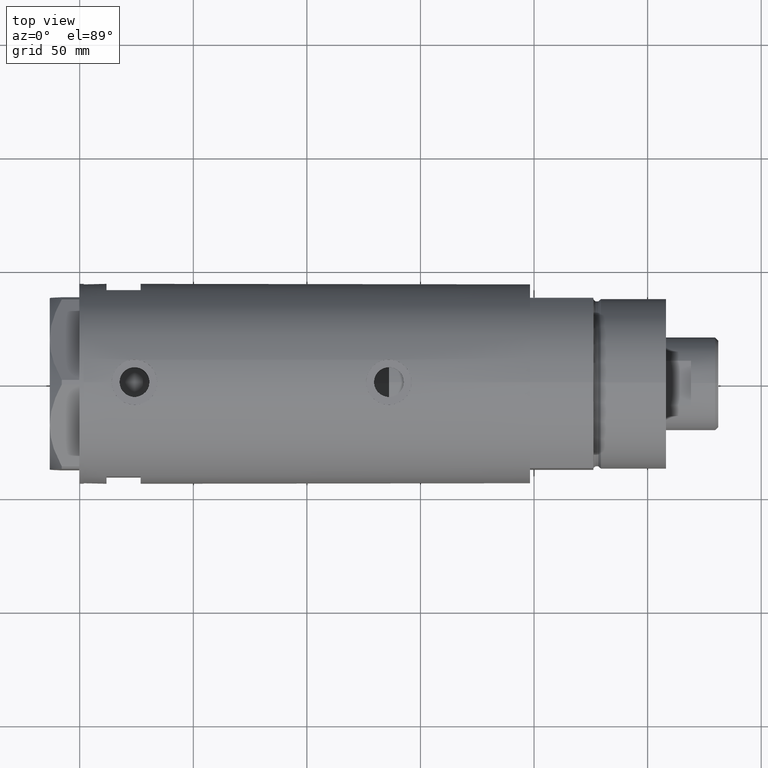
[diagram: clean part render]
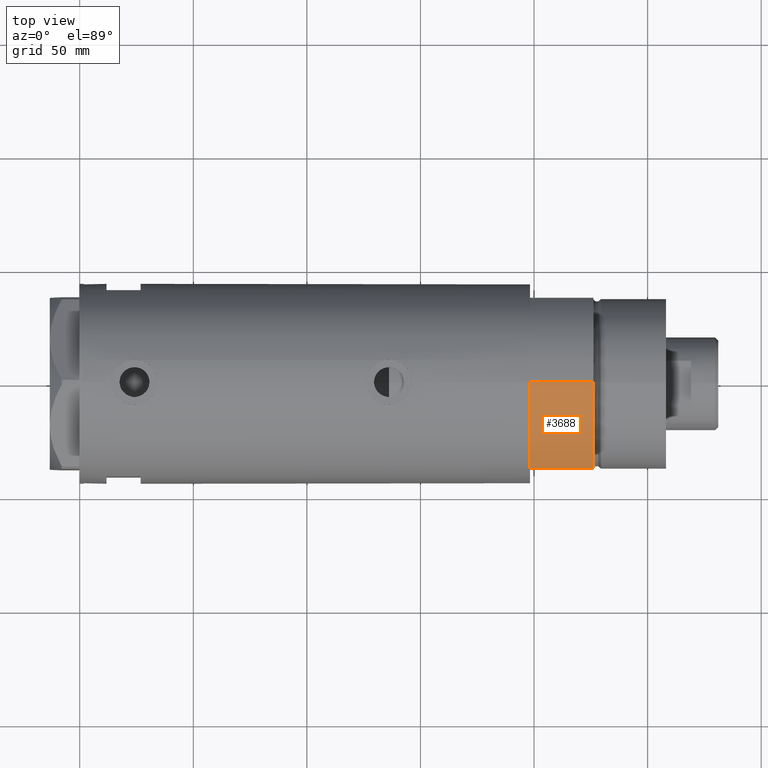
[diagram: same view with one face highlighted and labeled with its STEP entity id]
A machine part, top view. The second image highlights one B-rep face of the part: STEP entity #3688.
In plain terms, the highlighted cylindrical surface (partial cylindrical patch) has radius 44 mm, axis along (-1, -0, 0).
Its self-contained STEP definition (entity closure, byte-faithful):
#457 = CIRCLE ( 'NONE', #3197, 44.00000000000000000 ) ;
#659 = VERTEX_POINT ( 'NONE', #3876 ) ;
#760 = AXIS2_PLACEMENT_3D ( 'NONE', #4647, #1744, #4315 ) ;
#878 = VERTEX_POINT ( 'NONE', #2229 ) ;
#906 = VECTOR ( 'NONE', #4175, 1000.000000000000000 ) ;
#1007 = EDGE_CURVE ( 'NONE', #2985, #659, #4435, .T. ) ;
#1079 = EDGE_LOOP ( 'NONE', ( #2102, #3846, #1731, #3841 ) ) ;
#1587 = CARTESIAN_POINT ( 'NONE',  ( 0.000000000000000000, 0.000000000000000000, 27.89999999999999858 ) ) ;
#1618 = CARTESIAN_POINT ( 'NONE',  ( 0.000000000000000000, 0.000000000000000000, 27.89999999999999858 ) ) ;
#1731 = ORIENTED_EDGE ( 'NONE', *, *, #1007, .T. ) ;
#1744 = DIRECTION ( 'NONE',  ( 0.000000000000000000, 0.000000000000000000, 1.000000000000000000 ) ) ;
#1947 = FACE_OUTER_BOUND ( 'NONE', #1079, .T. ) ;
#2048 = EDGE_CURVE ( 'NONE', #2682, #878, #457, .T. ) ;
#2102 = ORIENTED_EDGE ( 'NONE', *, *, #2048, .F. ) ;
#2229 = CARTESIAN_POINT ( 'NONE',  ( -23.01629857296780557, -37.50000000000000000, 27.89999999999999858 ) ) ;
#2328 = DIRECTION ( 'NONE',  ( -0.000000000000000000, -0.000000000000000000, -1.000000000000000000 ) ) ;
#2682 = VERTEX_POINT ( 'NONE', #3021 ) ;
#2713 = DIRECTION ( 'NONE',  ( -0.000000000000000000, -0.000000000000000000, 1.000000000000000000 ) ) ;
#2736 = CYLINDRICAL_SURFACE ( 'NONE', #3113, 44.00000000000000000 ) ;
#2812 = VECTOR ( 'NONE', #2713, 1000.000000000000000 ) ;
#2985 = VERTEX_POINT ( 'NONE', #3664 ) ;
#3021 = CARTESIAN_POINT ( 'NONE',  ( -44.00000000000000000, 0.000000000000000000, 27.89999999999999858 ) ) ;
#3080 = DIRECTION ( 'NONE',  ( 0.000000000000000000, 0.000000000000000000, 1.000000000000000000 ) ) ;
#3098 = CARTESIAN_POINT ( 'NONE',  ( -23.01629857296780557, -37.50000000000000000, 0.000000000000000000 ) ) ;
#3113 = AXIS2_PLACEMENT_3D ( 'NONE', #1587, #2328, #3506 ) ;
#3187 = EDGE_CURVE ( 'NONE', #2682, #2985, #3875, .T. ) ;
#3197 = AXIS2_PLACEMENT_3D ( 'NONE', #1618, #3080, #3880 ) ;
#3217 = EDGE_CURVE ( 'NONE', #659, #878, #4195, .T. ) ;
#3506 = DIRECTION ( 'NONE',  ( -1.000000000000000000, 0.000000000000000000, 0.000000000000000000 ) ) ;
#3664 = CARTESIAN_POINT ( 'NONE',  ( -44.00000000000000000, 0.000000000000000000, 0.000000000000000000 ) ) ;
#3688 = ADVANCED_FACE ( 'NONE', ( #1947 ), #2736, .T. ) ;
#3841 = ORIENTED_EDGE ( 'NONE', *, *, #3217, .T. ) ;
#3846 = ORIENTED_EDGE ( 'NONE', *, *, #3187, .T. ) ;
#3854 = CARTESIAN_POINT ( 'NONE',  ( -44.00000000000000000, 0.000000000000000000, 27.89999999999999858 ) ) ;
#3875 = LINE ( 'NONE', #3854, #906 ) ;
#3876 = CARTESIAN_POINT ( 'NONE',  ( -23.01629857296780557, -37.50000000000000000, 0.000000000000000000 ) ) ;
#3880 = DIRECTION ( 'NONE',  ( 1.000000000000000000, 0.000000000000000000, 0.000000000000000000 ) ) ;
#4175 = DIRECTION ( 'NONE',  ( -0.000000000000000000, -0.000000000000000000, -1.000000000000000000 ) ) ;
#4195 = LINE ( 'NONE', #3098, #2812 ) ;
#4315 = DIRECTION ( 'NONE',  ( 1.000000000000000000, 0.000000000000000000, 0.000000000000000000 ) ) ;
#4435 = CIRCLE ( 'NONE', #760, 44.00000000000000000 ) ;
#4647 = CARTESIAN_POINT ( 'NONE',  ( 0.000000000000000000, 0.000000000000000000, 0.000000000000000000 ) ) ;